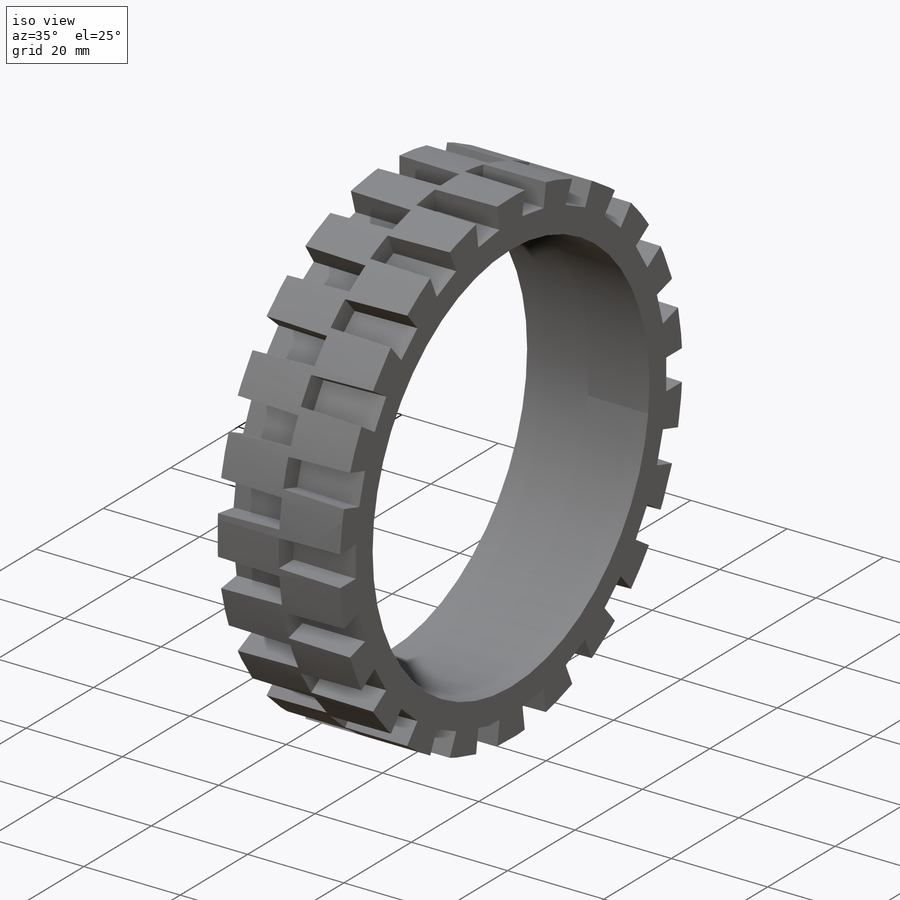
[diagram: iso view]
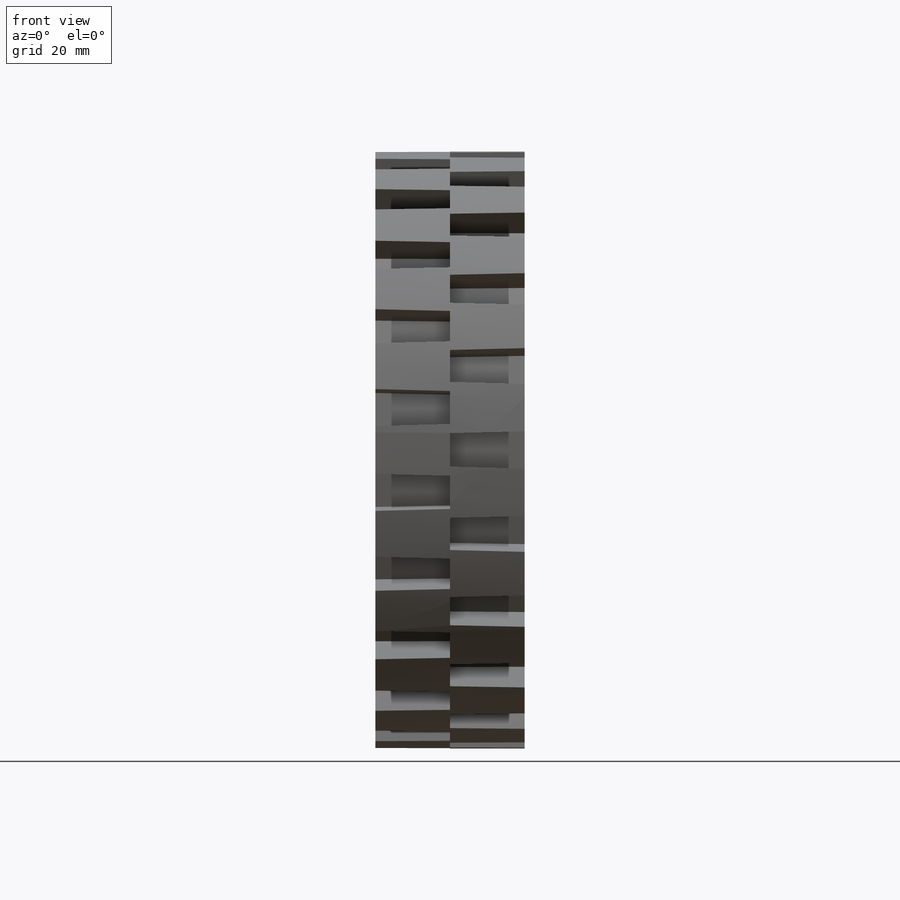
[diagram: front view]
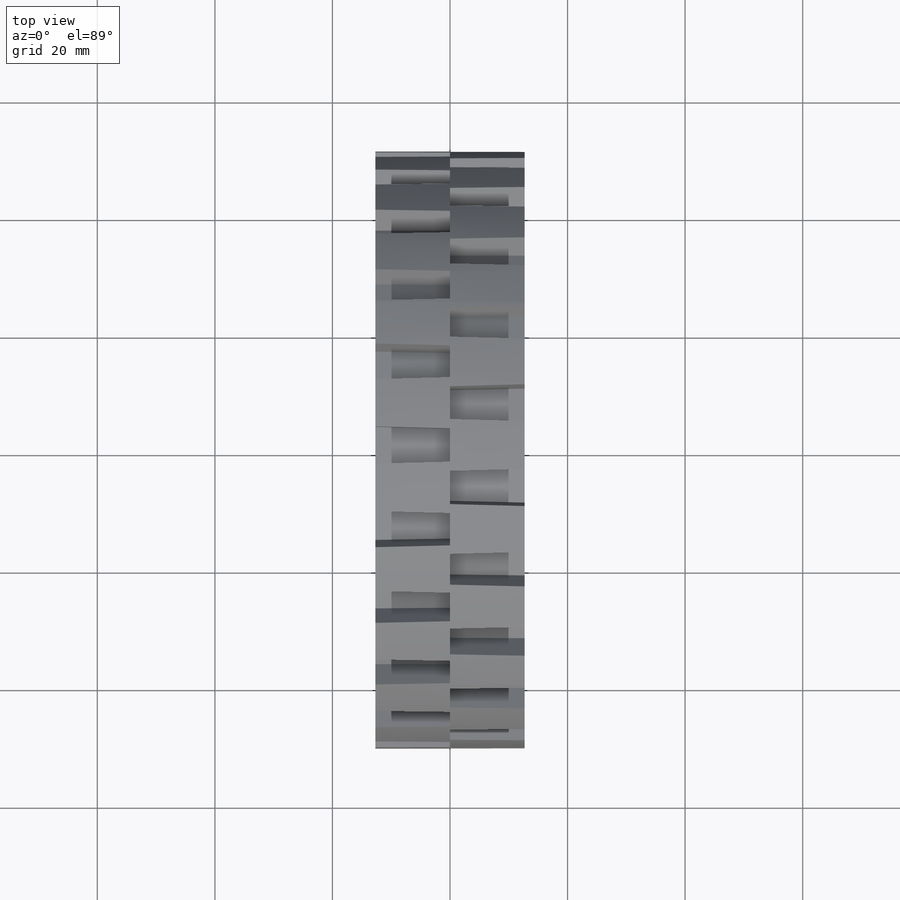
[diagram: top view]
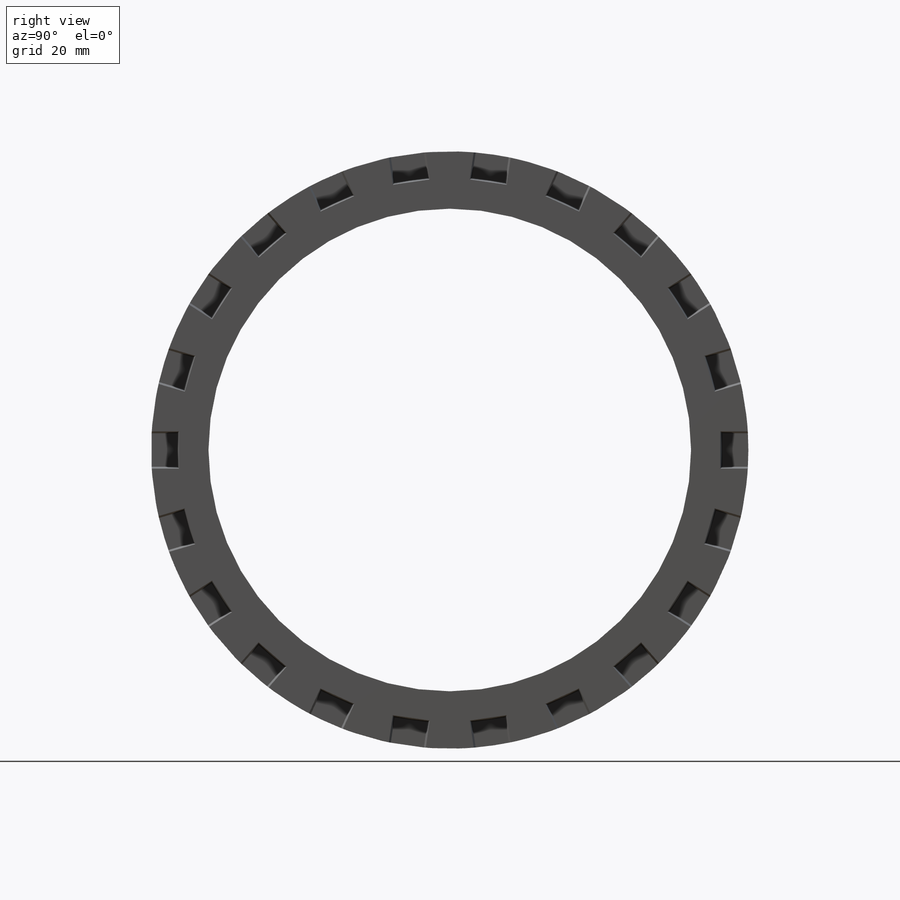
[diagram: right view]
SOLIDWORKS PART (.sldprt)
format: sldprt  version: not decoded by parser v0  size: 1,781,248 bytes
history: native  units: mm
features: sketch x3, cut_extrude x2, boolean_combine x2, material x1, extrude x1, move_body x1 + 1 further entry (+18 scaffold rows collapsed; 5 parser-record rows omitted)
feature tree (34):
  scaffold x18  (default folders/planes/origin — collapsed)
  material  "EPDM 60 Durometer"
  sketch  "Sketch1"  dims[D1=101.6mm D2=82.1055mm]
  extrude  "Boss-Extrude1"  Depth=12.7mm
  sketch  "Sketch2"  dims[D1=6.35mm D2=9.525mm D3=22.0]
  cut_extrude  "Cut-Extrude1"  Depth=25.4mm
  sketch  "Sketch3"  dims[D1=6.35mm D2=9.525mm D3=22.0]
  cut_extrude  "Cut-Extrude2"  Depth=25.4mm
  "4in 2013 Hub"
  parser-record x5  (decoder bookkeeping rows leaked as tree rows — omitted from the tree; the rows remain in map.json)
  move_body  "Body-Move/Copy2"
  boolean_combine  "Combine1"
  boolean_combine  "Draft2"
decode coverage: 6 of 9 modeling features carry decoded parameters; 1 rows unclassified (native names shown)
note: suppression state not decoded; provenance and decode notes live in map.json
